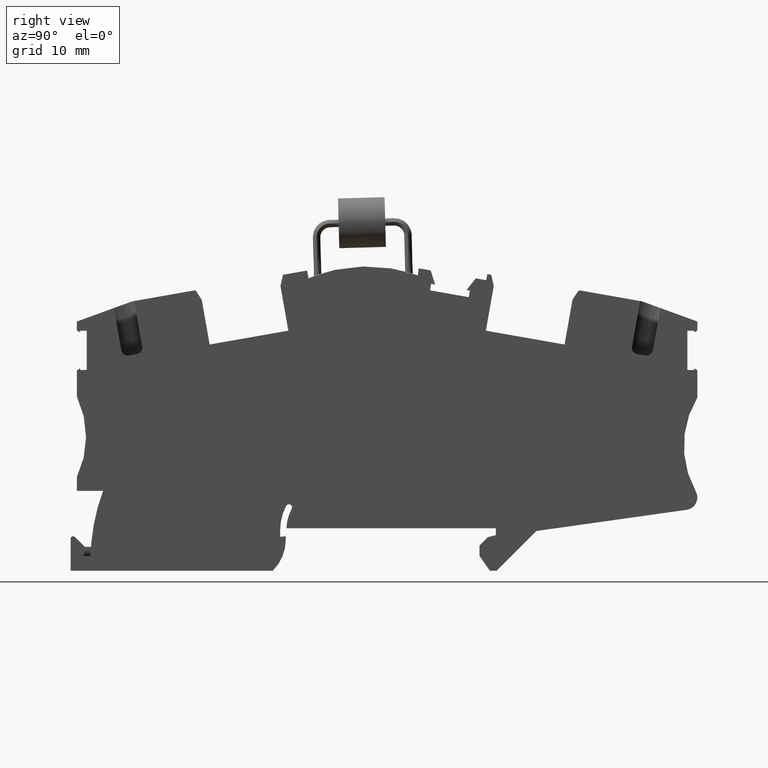
[diagram: clean part render]
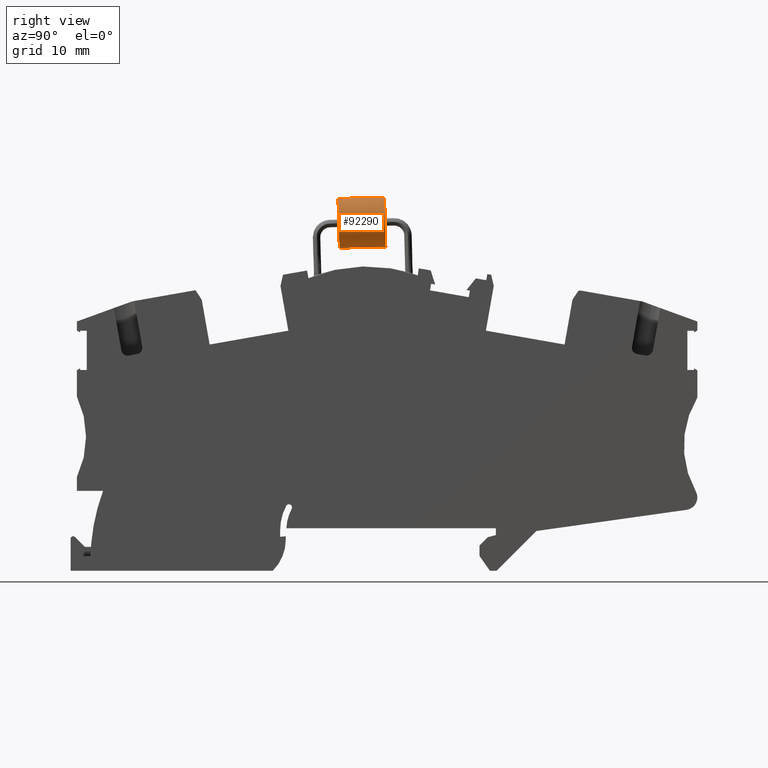
[diagram: same view with one face highlighted and labeled with its STEP entity id]
A machine part, right view. The second image highlights one B-rep face of the part: STEP entity #92290.
In plain terms, the highlighted cylindrical surface (edge-blend (fillet) strip) has radius 4 mm, axis along (0, -0.9996, -0.0268).
Its self-contained STEP definition (entity closure, byte-faithful):
#74870=CARTESIAN_POINT('',(4.38825810505016,-3.98371013672878,
-49.595000013435));
#74880=DIRECTION('',(-0.989101789065928,-0.147233321183011,
-1.26038828161194E-12));
#74890=DIRECTION('',(-0.147233321183011,0.989101789065928,
-1.39149026538549E-12));
#74900=AXIS2_PLACEMENT_3D('',#74870,#74880,#74890);
#74910=CIRCLE('',#74900,4.);
#74920=CARTESIAN_POINT('',(3.79932482029558,-0.0273029804684151,
-49.5950000134405));
#74930=VERTEX_POINT('',#74920);
#74940=CARTESIAN_POINT('',(4.9771913897822,-7.94011729299249,
-49.5950000134294));
#74950=VERTEX_POINT('',#74940);
#74960=EDGE_CURVE('',#74930,#74950,#74910,.T.);
#76310=CARTESIAN_POINT('',(17.8849721109143,-6.01872209819758,
-49.595000013413));
#76320=DIRECTION('',(-0.989101789065928,-0.147233321183011,
-1.26038828161194E-12));
#76330=VECTOR('',#76320,1.);
#76340=LINE('',#76310,#76330);
#76350=CARTESIAN_POINT('',(-2.44107202813649,-9.04436720185379,
-49.5950000134389));
#76360=VERTEX_POINT('',#76350);
#76370=EDGE_CURVE('',#74950,#76360,#76340,.T.);
#76390=CARTESIAN_POINT('',(-3.03000531286853,-5.08796004559008,
-49.5950000134444));
#76400=DIRECTION('',(-0.989101789065928,-0.147233321183011,
-1.26038828161194E-12));
#76410=DIRECTION('',(-0.147233321183011,0.989101789065928,
-1.39149026538549E-12));
#76420=AXIS2_PLACEMENT_3D('',#76390,#76400,#76410);
#76430=CIRCLE('',#76420,4.);
#76440=CARTESIAN_POINT('',(-3.61893859769888,-1.131552889341,
-49.59500001345));
#76450=VERTEX_POINT('',#76440);
#76480=CARTESIAN_POINT('',(16.7071055414502,1.89409221432985,
-49.5950000134241));
#76490=DIRECTION('',(-0.989101789065928,-0.147233321183011,
-1.26038828161194E-12));
#76500=VECTOR('',#76490,1.);
#76510=LINE('',#76480,#76500);
#76520=EDGE_CURVE('',#74930,#76450,#76510,.T.);
#76700=EDGE_CURVE('',#76450,#76360,#76430,.T.);
#92180=CARTESIAN_POINT('',(17.2960388261823,-2.06231494193386,
-49.5950000134185));
#92190=DIRECTION('',(-0.989101789065928,-0.147233321183011,
-1.26038828161194E-12));
#92200=DIRECTION('',(-0.147233321183011,0.989101789065928,
-1.39149026538549E-12));
#92210=AXIS2_PLACEMENT_3D('',#92180,#92190,#92200);
#92220=CYLINDRICAL_SURFACE('',#92210,4.);
#92230=ORIENTED_EDGE('',*,*,#74960,.T.);
#92240=ORIENTED_EDGE('',*,*,#76520,.F.);
#92250=ORIENTED_EDGE('',*,*,#76700,.F.);
#92260=ORIENTED_EDGE('',*,*,#76370,.T.);
#92270=EDGE_LOOP('',(#92260,#92250,#92240,#92230));
#92280=FACE_OUTER_BOUND('',#92270,.T.);
#92290=ADVANCED_FACE('',(#92280),#92220,.T.);